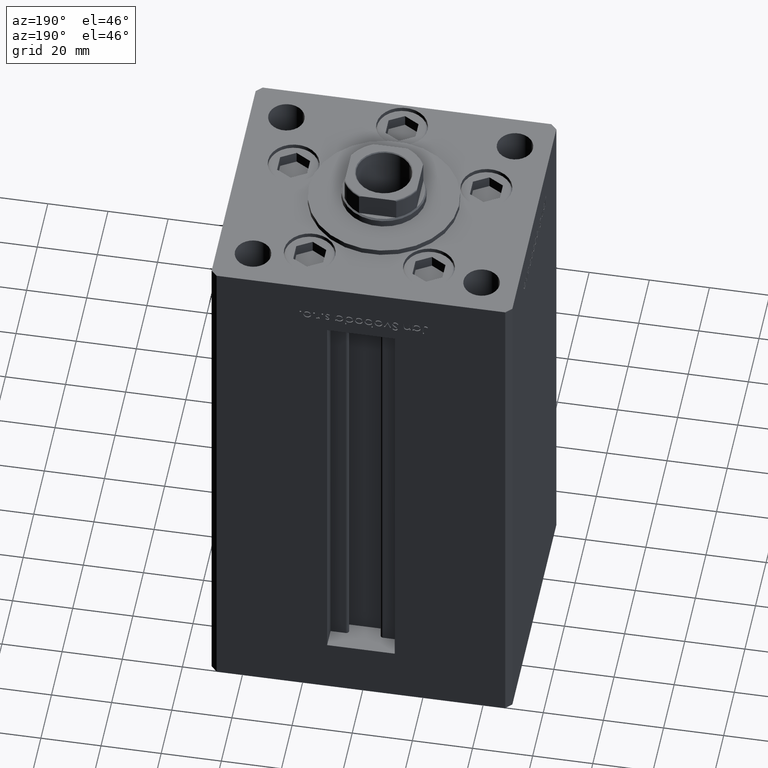
[diagram: clean part render]
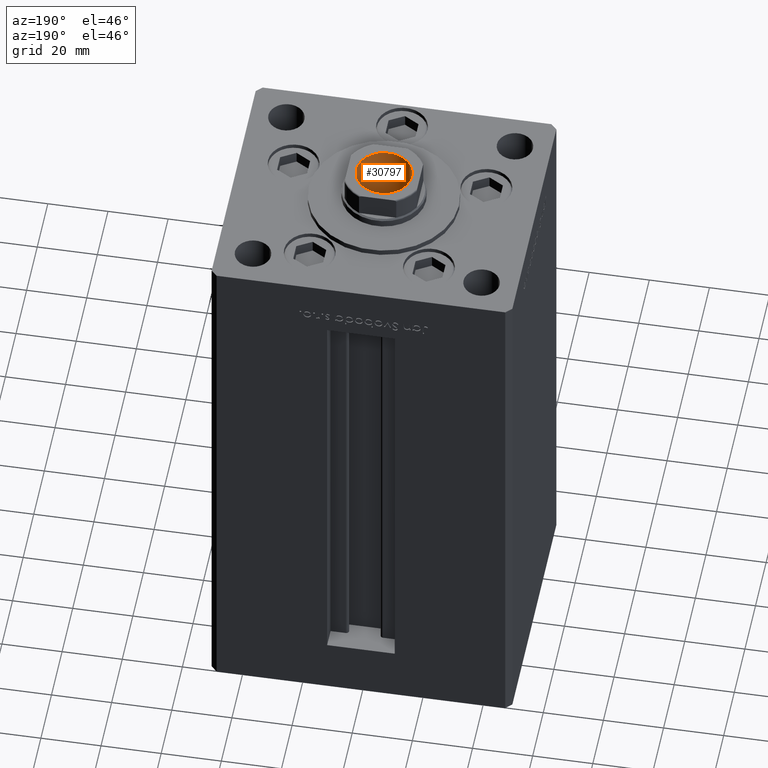
[diagram: same view with one face highlighted and labeled with its STEP entity id]
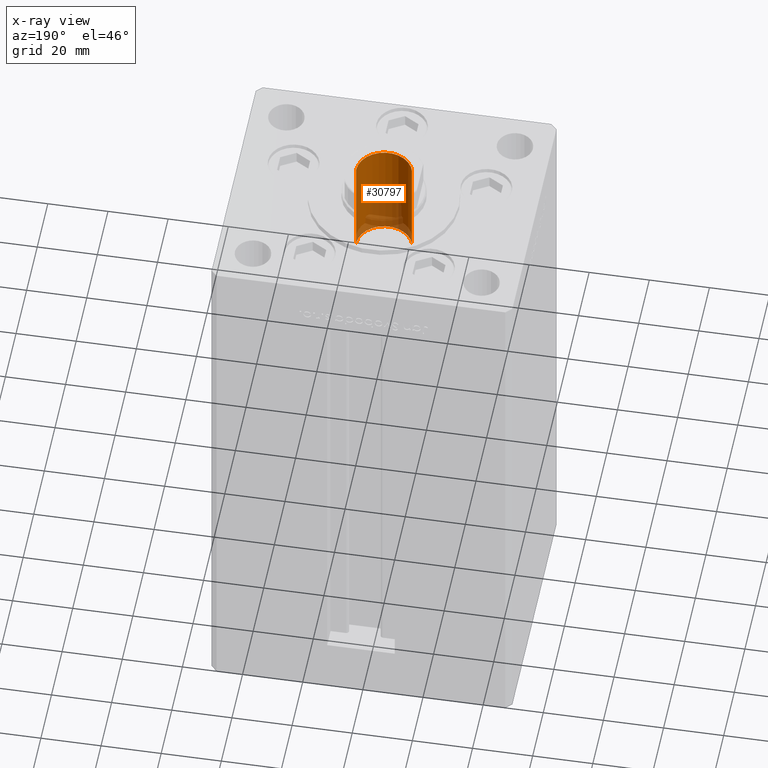
[diagram: x-ray of the same camera — body ghosted, the highlighted face saturated]
A machine part, auxiliary view. The second image highlights one B-rep face of the part: STEP entity #30797.
The next image is the same camera in x-ray: the body ghosted, the highlighted face saturated — about 30% of this face is hidden behind the body in this view.
In plain terms, the highlighted cylindrical surface (edge-blend (fillet) strip) has radius 9.25 mm, axis along (0, 0, 1).
Its self-contained STEP definition (entity closure, byte-faithful):
#936 = VERTEX_POINT ( 'NONE', #43622 ) ;
#1478 = EDGE_CURVE ( 'NONE', #24017, #936, #27719, .T. ) ;
#1884 = DIRECTION ( 'NONE',  ( -0.000000000000000000, -0.000000000000000000, 1.000000000000000000 ) ) ;
#2694 = ORIENTED_EDGE ( 'NONE', *, *, #51105, .F. ) ;
#3180 = DIRECTION ( 'NONE',  ( -0.000000000000000000, -0.000000000000000000, 1.000000000000000000 ) ) ;
#3876 = CARTESIAN_POINT ( 'NONE',  ( 0.000000000000000000, 0.000000000000000000, 164.9499999999999886 ) ) ;
#5192 = VERTEX_POINT ( 'NONE', #31007 ) ;
#5846 = CYLINDRICAL_SURFACE ( 'NONE', #13878, 9.249999999999996447 ) ;
#6302 = DIRECTION ( 'NONE',  ( -0.000000000000000000, -0.000000000000000000, 1.000000000000000000 ) ) ;
#8245 = AXIS2_PLACEMENT_3D ( 'NONE', #3876, #48474, #13101 ) ;
#10263 = DIRECTION ( 'NONE',  ( 1.000000000000000000, 0.000000000000000000, 0.000000000000000000 ) ) ;
#12582 = LINE ( 'NONE', #20505, #38762 ) ;
#13101 = DIRECTION ( 'NONE',  ( 1.000000000000000000, 0.000000000000000000, 0.000000000000000000 ) ) ;
#13878 = AXIS2_PLACEMENT_3D ( 'NONE', #38048, #1884, #18000 ) ;
#14486 = CARTESIAN_POINT ( 'NONE',  ( 0.000000000000000000, 0.000000000000000000, 130.2500000000000000 ) ) ;
#14997 = CIRCLE ( 'NONE', #8245, 9.249999999999996447 ) ;
#18000 = DIRECTION ( 'NONE',  ( 1.000000000000000000, 0.000000000000000000, 0.000000000000000000 ) ) ;
#19381 = EDGE_CURVE ( 'NONE', #24017, #5192, #31928, .T. ) ;
#20505 = CARTESIAN_POINT ( 'NONE',  ( 9.249999999999996447, 0.000000000000000000, 165.2500000000000000 ) ) ;
#20958 = ORIENTED_EDGE ( 'NONE', *, *, #1478, .F. ) ;
#23249 = CARTESIAN_POINT ( 'NONE',  ( -9.249999999999996447, 1.132798289211301304E-15, 165.2500000000000000 ) ) ;
#24017 = VERTEX_POINT ( 'NONE', #50629 ) ;
#27719 = CIRCLE ( 'NONE', #40323, 9.249999999999994671 ) ;
#30797 = ADVANCED_FACE ( 'NONE', ( #42003 ), #5846, .F. ) ;
#31007 = CARTESIAN_POINT ( 'NONE',  ( -9.249999999999996447, 1.132798289211301304E-15, 164.9499999999999886 ) ) ;
#31928 = LINE ( 'NONE', #23249, #32299 ) ;
#32299 = VECTOR ( 'NONE', #3180, 1000.000000000000000 ) ;
#36039 = ORIENTED_EDGE ( 'NONE', *, *, #41102, .T. ) ;
#38048 = CARTESIAN_POINT ( 'NONE',  ( 0.000000000000000000, 0.000000000000000000, 165.2500000000000000 ) ) ;
#38762 = VECTOR ( 'NONE', #44772, 1000.000000000000000 ) ;
#40323 = AXIS2_PLACEMENT_3D ( 'NONE', #14486, #6302, #10263 ) ;
#41102 = EDGE_CURVE ( 'NONE', #5192, #48083, #14997, .T. ) ;
#42003 = FACE_OUTER_BOUND ( 'NONE', #42900, .T. ) ;
#42900 = EDGE_LOOP ( 'NONE', ( #20958, #45708, #36039, #2694 ) ) ;
#43622 = CARTESIAN_POINT ( 'NONE',  ( 9.249999999999994671, 0.000000000000000000, 130.2500000000000000 ) ) ;
#44772 = DIRECTION ( 'NONE',  ( -0.000000000000000000, -0.000000000000000000, 1.000000000000000000 ) ) ;
#45708 = ORIENTED_EDGE ( 'NONE', *, *, #19381, .T. ) ;
#48083 = VERTEX_POINT ( 'NONE', #49146 ) ;
#48474 = DIRECTION ( 'NONE',  ( 0.000000000000000000, 0.000000000000000000, 1.000000000000000000 ) ) ;
#49146 = CARTESIAN_POINT ( 'NONE',  ( 9.249999999999996447, 0.000000000000000000, 164.9499999999999886 ) ) ;
#50629 = CARTESIAN_POINT ( 'NONE',  ( -9.249999999999994671, 1.132798289211300909E-15, 130.2500000000000000 ) ) ;
#51105 = EDGE_CURVE ( 'NONE', #936, #48083, #12582, .T. ) ;